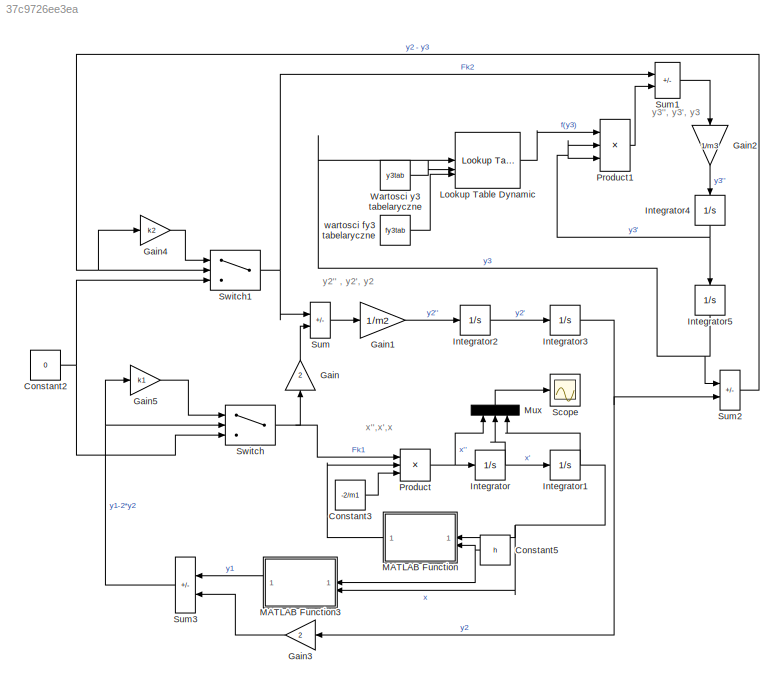
MODEL slx_37c9726ee3ea
KIND model
CONFIG AbsTol = auto
CONFIG EnableMultiTasking = off
CONFIG FixedStep = auto
CONFIG MaxStep = auto
CONFIG MinStep = auto
CONFIG RelTol = 1e-3
CONFIG SampleTimeConstraint = Unconstrained
CONFIG SolverName = VariableStepAuto
CONFIG StartTime = 0.0
CONFIG StopTime = 10.0
BLOCK [Constant] Constant2
  Value = 0
BLOCK [Constant] Constant3
  Value = -2/m1
BLOCK [Constant] Constant5
  Value = h
BLOCK [Gain] Gain
  Gain = 2
  NameLocation = right
BLOCK [Gain] Gain1
  Gain = 1/m2
BLOCK [Gain] Gain2
  Gain = 1/m3
  NameLocation = left
BLOCK [Gain] Gain3
  Gain = 2
BLOCK [Gain] Gain4
  Gain = k2
BLOCK [Gain] Gain5
  Gain = k1
BLOCK [Integrator] Integrator
  InitialCondition = xp0
BLOCK [Integrator] Integrator1
  InitialCondition = x0
BLOCK [Integrator] Integrator2
  InitialCondition = y2p0
BLOCK [Integrator] Integrator3
BLOCK [Integrator] Integrator4
  InitialCondition = y3p0
  NameLocation = left
BLOCK [Integrator] Integrator5
  InitialCondition = y30
  NameLocation = left
BLOCK [Reference] Lookup Table Dynamic  REF=simulink/Lookup
Tables/Lookup
Table
Dynamic
  SourceBlock = simulink/Lookup\nTables/Lookup\nTable\nDynamic
  SourceType = Lookup Table Dynamic
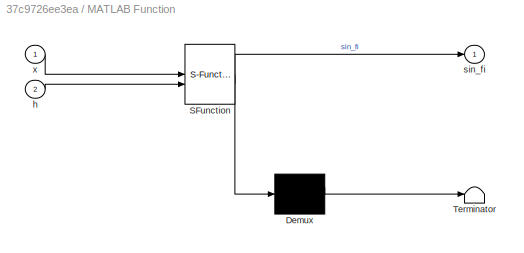
BLOCK [SubSystem] MATLAB Function
  ErrorFcn = Stateflow.Translate.translate
  LibrarySourceBlock = simulink/User-Defined\nFunctions/MATLAB Function
  PermitHierarchicalResolution = ExplicitOnly
  SFBlockType = MATLAB Function
  TreatAsAtomicUnit = on
BLOCK [Demux] MATLAB Function/ Demux 
  Outputs = 1
BLOCK [S-Function] MATLAB Function/ SFunction 
  EnableBusSupport = on
  FunctionName = sf_sfun
  PortCounts = [2 2]
  SFcnIsStateOwnerBlock = off
  SFunctionDeploymentMode = off
  Tag = Stateflow S-Function 2
BLOCK [Terminator] MATLAB Function/ Terminator 
BLOCK [Inport] MATLAB Function/h
  Port = 2
BLOCK [Outport] MATLAB Function/sin_fi
BLOCK [Inport] MATLAB Function/x
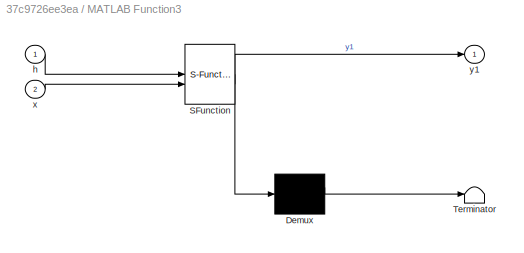
BLOCK [SubSystem] MATLAB Function3
  ErrorFcn = Stateflow.Translate.translate
  LibrarySourceBlock = simulink/User-Defined\nFunctions/MATLAB Function
  PermitHierarchicalResolution = ExplicitOnly
  SFBlockType = MATLAB Function
  TreatAsAtomicUnit = on
BLOCK [Demux] MATLAB Function3/ Demux 
  Outputs = 1
BLOCK [S-Function] MATLAB Function3/ SFunction 
  EnableBusSupport = on
  FunctionName = sf_sfun
  PortCounts = [2 2]
  SFcnIsStateOwnerBlock = off
  SFunctionDeploymentMode = off
  Tag = Stateflow S-Function 4
BLOCK [Terminator] MATLAB Function3/ Terminator 
BLOCK [Inport] MATLAB Function3/h
BLOCK [Inport] MATLAB Function3/x
  Port = 2
BLOCK [Outport] MATLAB Function3/y1
BLOCK [Mux] Mux
  DisplayOption = bar
  Inputs = 3
  NameLocation = left
BLOCK [Product] Product
  Inputs = 3
BLOCK [Product] Product1
  Inputs = 3
BLOCK [Scope] Scope
  Floating = off
  NumInputPorts = 1
  ScopeSpecificationString = Simulink.scopes.TimeScopeBlockCfg('CurrentConfiguration', extmgr.ConfigurationSet(extmgr.Configuration('Core','General UI',true),extmgr.Configuration('Core','Source UI',true),extmgr.Configuration('Sources','WiredSimulink',true),extmgr.Configuration('Visuals','Time Domain',true,'SerializedDisplays',{struct('MinYLimReal','-49.47475','MaxYLimReal','277.87947','YLabelReal','','MinYLimMag','0.00000','M...<+1405ch>
BLOCK [Sum] Sum
  IconShape = rectangular
  Inputs = |-+
BLOCK [Sum] Sum1
  IconShape = rectangular
  Inputs = |+-
BLOCK [Sum] Sum2
  IconShape = rectangular
  Inputs = |-+
BLOCK [Sum] Sum3
  IconShape = rectangular
  Inputs = |+-
BLOCK [Switch] Switch
  InputSameDT = off
  SaturateOnIntegerOverflow = off
BLOCK [Switch] Switch1
  InputSameDT = off
  SaturateOnIntegerOverflow = off
BLOCK [Constant] Wartosci y3 tabelaryczne
  Value = y3tab
BLOCK [Constant] wartosci fy3 tabelaryczne
  Value = fy3tab
ANNOTATION (root): x'',x',x
ANNOTATION (root): y2'' , y2', y2
ANNOTATION (root): y3'', y3', y3
NET Constant2:1 -> Switch1:3, Switch:3
LINE Constant3:1 -> Product:3
NET Constant5:1 -> MATLAB Function3:1, MATLAB Function:2
LINE Gain1:1 -> Integrator2:1
LINE Gain2:1 -> Integrator4:1
LINE Gain3:1 -> Sum3:2
LINE Gain4:1 -> Switch1:1
LINE Gain5:1 -> Switch:1
LINE Gain:1 -> Sum:2
NET Integrator1:1 -> MATLAB Function3:2, MATLAB Function:1, Mux:3
LINE Integrator2:1 -> Integrator3:1
NET Integrator3:1 -> Gain3:1, Sum2:2
NET Integrator4:1 -> Integrator5:1, Product1:2, Product1:3
NET Integrator5:1 -> Lookup Table Dynamic:1, Sum2:1
NET Integrator:1 -> Integrator1:1, Mux:2
LINE Lookup Table Dynamic:1 -> Product1:1
LINE MATLAB Function3:1 -> Sum3:1
LINE MATLAB Function:1 -> Product:2
LINE Mux:1 -> Scope:1
LINE Product1:1 -> Sum1:2
NET Product:1 -> Integrator:1, Mux:1
LINE Sum1:1 -> Gain2:1
NET Sum2:1 -> Gain4:1, Switch1:2
NET Sum3:1 -> Gain5:1, Switch:2
LINE Sum:1 -> Gain1:1
NET Switch1:1 -> Sum1:1, Sum:1
NET Switch:1 -> Gain:1, Product:1
LINE Wartosci y3 tabelaryczne:1 -> Lookup Table Dynamic:2
LINE wartosci fy3 tabelaryczne:1 -> Lookup Table Dynamic:3
note: NET lines group one-source signal fan-out (src -> all destinations, sorted); 1:1 wires keep LINE
CHART MATLAB Function3 states=1 transitions=1
  STATE_LABEL 'eML_blk_kernel()'
  STATE_LABEL 'SCRIPT:\nfunction y1 = fcn(h, x)\n\ny1 = sqrt(x^2 + h^2) - h;\n'
CHART MATLAB Function states=1 transitions=1
  STATE_LABEL 'eML_blk_kernel()'
  STATE_LABEL 'SCRIPT:\n\nfunction sin_fi = fcn(x,h)\n\nsin_fi = x/sqrt(x^2+h^2);\n'
CHART  states=0 transitions=0
CHART  states=0 transitions=0
